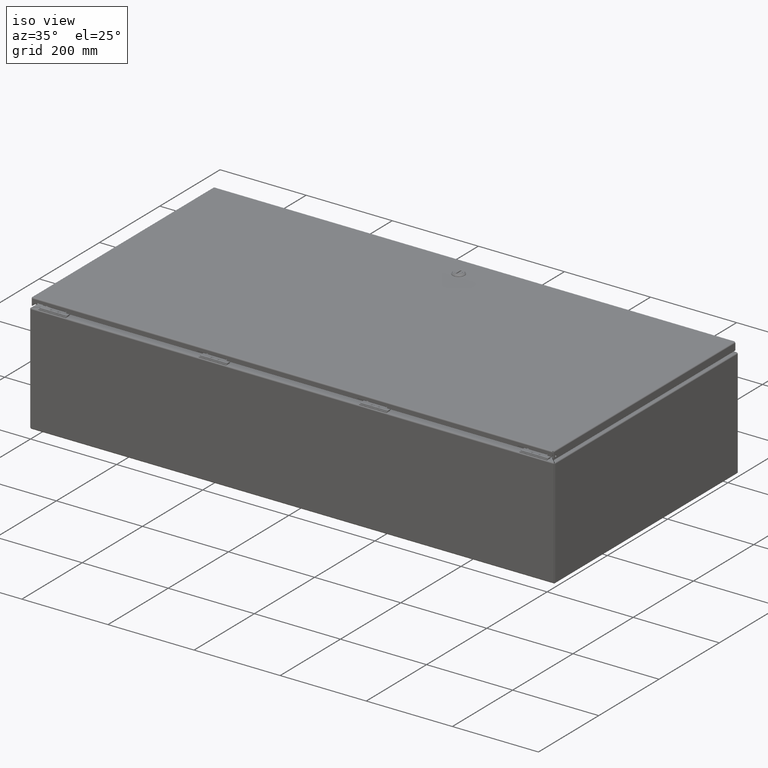
[diagram: clean part render]
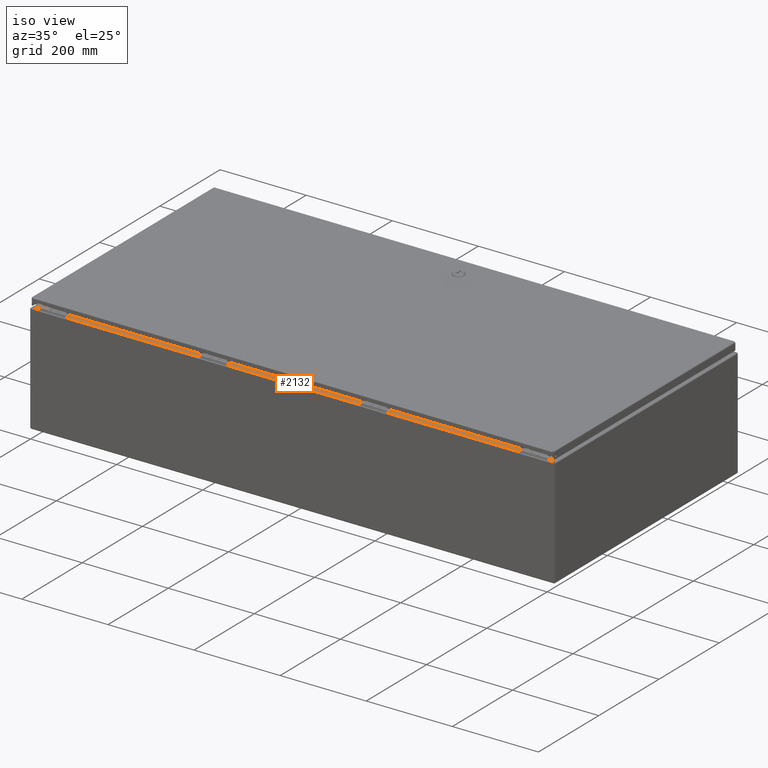
[diagram: same view with one face highlighted and labeled with its STEP entity id]
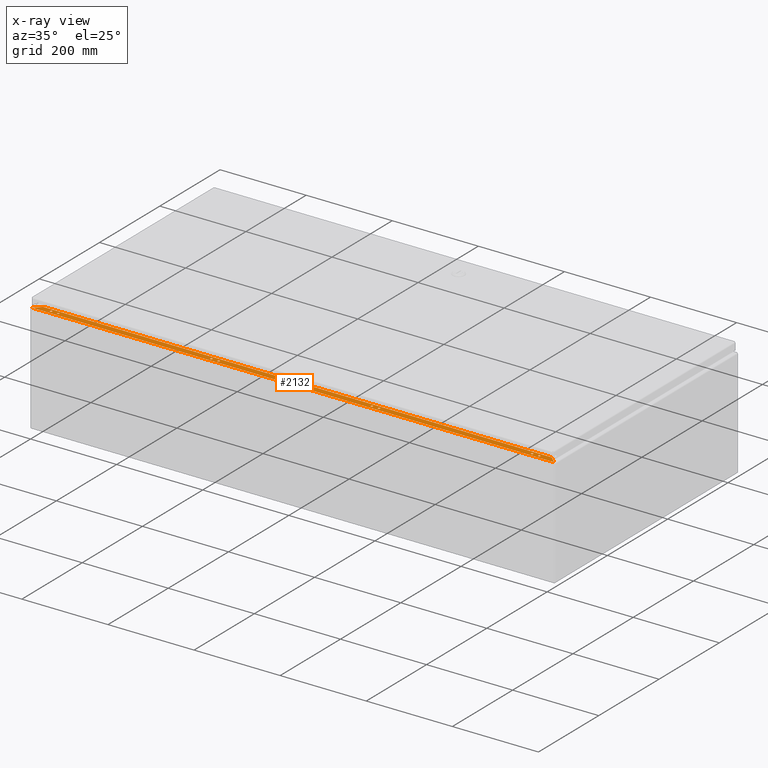
[diagram: x-ray of the same camera — body ghosted, the highlighted face saturated]
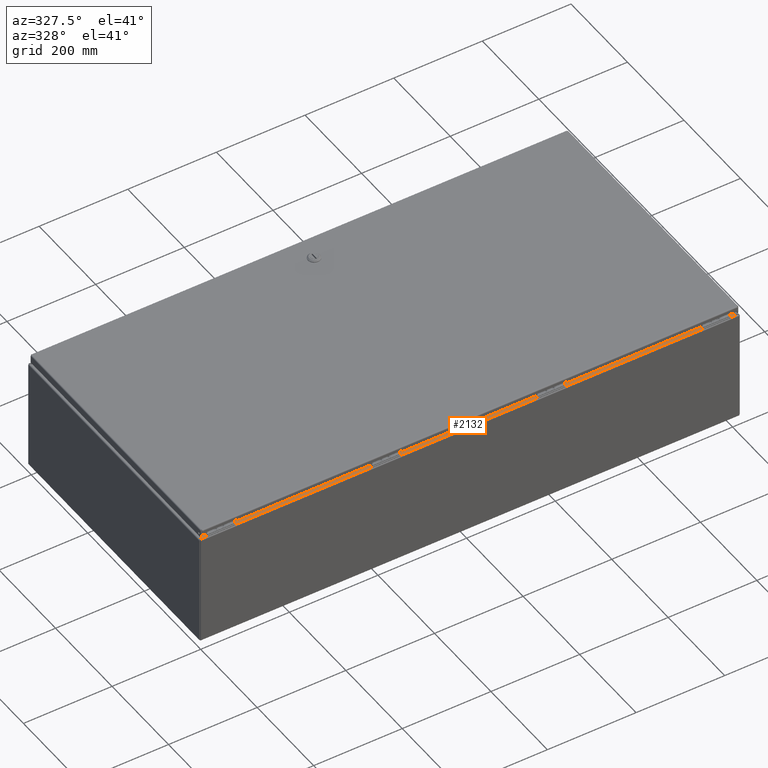
[diagram: same view with one face highlighted and labeled with its STEP entity id]
A machine part, iso view. The second image highlights one B-rep face of the part: STEP entity #2132.
The next image is the same camera in x-ray: the body ghosted, the highlighted face saturated — about 0% of this face is hidden behind the body in this view.
A second angle (auxiliary view) of the same face is appended — the face is thin or edge-on in the first view.
In plain terms, the highlighted planar face has unit normal (0, 0, -1).
Its self-contained STEP definition (entity closure, byte-faithful):
#247=CARTESIAN_POINT('',(31.683499999999995,0.400000000000001,9.999999999999957));
#248=VERTEX_POINT('',#247);
#249=CARTESIAN_POINT('',(31.589499999999997,0.400000000000001,9.999999999999963));
#250=DIRECTION('',(0.0,0.0,-1.0));
#251=DIRECTION('',(-1.0,0.0,0.0));
#252=AXIS2_PLACEMENT_3D('',#249,#250,#251);
#253=CIRCLE('',#252,0.094000000000000);
#254=EDGE_CURVE('',#248,#248,#253,.T.);
#275=CARTESIAN_POINT('',(31.023499999999995,0.400000000000001,9.999999999999957));
#276=VERTEX_POINT('',#275);
#277=CARTESIAN_POINT('',(30.929499999999997,0.400000000000001,9.999999999999963));
#278=DIRECTION('',(0.0,0.0,-1.0));
#279=DIRECTION('',(-1.0,0.0,0.0));
#280=AXIS2_PLACEMENT_3D('',#277,#278,#279);
#281=CIRCLE('',#280,0.094000000000000);
#282=EDGE_CURVE('',#276,#276,#281,.T.);
#303=CARTESIAN_POINT('',(16.356499999999805,0.399999999999989,9.999999999999957));
#304=VERTEX_POINT('',#303);
#305=CARTESIAN_POINT('',(16.262499999999804,0.399999999999989,9.999999999999963));
#306=DIRECTION('',(0.0,0.0,-1.0));
#307=DIRECTION('',(-1.0,0.0,0.0));
#308=AXIS2_PLACEMENT_3D('',#305,#306,#307);
#309=CIRCLE('',#308,0.094000000000000);
#310=EDGE_CURVE('',#304,#304,#309,.T.);
#331=CARTESIAN_POINT('',(17.016499999999805,0.399999999999989,9.999999999999957));
#332=VERTEX_POINT('',#331);
#333=CARTESIAN_POINT('',(16.922499999999808,0.399999999999989,9.999999999999963));
#334=DIRECTION('',(0.0,0.0,-1.0));
#335=DIRECTION('',(-1.0,0.0,0.0));
#336=AXIS2_PLACEMENT_3D('',#333,#334,#335);
#337=CIRCLE('',#336,0.094000000000000);
#338=EDGE_CURVE('',#332,#332,#337,.T.);
#359=CARTESIAN_POINT('',(46.350000000000001,0.399999999999994,9.999999999999957));
#360=VERTEX_POINT('',#359);
#361=CARTESIAN_POINT('',(46.256000000000000,0.399999999999994,9.999999999999963));
#362=DIRECTION('',(0.0,0.0,-1.0));
#363=DIRECTION('',(-1.0,0.0,0.0));
#364=AXIS2_PLACEMENT_3D('',#361,#362,#363);
#365=CIRCLE('',#364,0.094000000000000);
#366=EDGE_CURVE('',#360,#360,#365,.T.);
#387=CARTESIAN_POINT('',(45.690000000000005,0.399999999999994,9.999999999999957));
#388=VERTEX_POINT('',#387);
#389=CARTESIAN_POINT('',(45.596000000000004,0.399999999999994,9.999999999999963));
#390=DIRECTION('',(0.0,0.0,-1.0));
#391=DIRECTION('',(-1.0,0.0,0.0));
#392=AXIS2_PLACEMENT_3D('',#389,#390,#391);
#393=CIRCLE('',#392,0.094000000000000);
#394=EDGE_CURVE('',#388,#388,#393,.T.);
#415=CARTESIAN_POINT('',(2.349999999999802,0.399999999999989,9.999999999999957));
#416=VERTEX_POINT('',#415);
#417=CARTESIAN_POINT('',(2.255999999999802,0.399999999999989,9.999999999999963));
#418=DIRECTION('',(0.0,0.0,-1.0));
#419=DIRECTION('',(-1.0,0.0,0.0));
#420=AXIS2_PLACEMENT_3D('',#417,#418,#419);
#421=CIRCLE('',#420,0.094000000000000);
#422=EDGE_CURVE('',#416,#416,#421,.T.);
#443=CARTESIAN_POINT('',(1.689999999999802,0.399999999999989,9.999999999999957));
#444=VERTEX_POINT('',#443);
#445=CARTESIAN_POINT('',(1.595999999999802,0.399999999999989,9.999999999999963));
#446=DIRECTION('',(0.0,0.0,-1.0));
#447=DIRECTION('',(-1.0,0.0,0.0));
#448=AXIS2_PLACEMENT_3D('',#445,#446,#447);
#449=CIRCLE('',#448,0.094000000000000);
#450=EDGE_CURVE('',#444,#444,#449,.T.);
#703=CARTESIAN_POINT('',(0.065093184460405,0.105249999999999,10.000000000000002));
#704=VERTEX_POINT('',#703);
#738=CARTESIAN_POINT('',(47.786906815539673,0.105249999999999,10.000000000000002));
#739=VERTEX_POINT('',#738);
#890=CARTESIAN_POINT('',(47.184906815539669,0.707250000000000,9.999999999999991));
#891=VERTEX_POINT('',#890);
#898=CARTESIAN_POINT('',(47.786906815539680,0.105250000000002,9.999999999999965));
#899=DIRECTION('',(-0.707106781186548,0.707106781186547,-1.877851E-014));
#900=VECTOR('',#899,0.851356564548608);
#901=LINE('',#898,#900);
#902=EDGE_CURVE('',#739,#891,#901,.T.);
#914=CARTESIAN_POINT('',(0.667093184460414,0.707250000000000,9.999999999999991));
#915=VERTEX_POINT('',#914);
#916=CARTESIAN_POINT('',(0.667093184460413,0.707250000000001,9.999999999999950));
#917=DIRECTION('',(-0.707106781186551,-0.707106781186544,1.877851E-014));
#918=VECTOR('',#917,0.851356564548611);
#919=LINE('',#916,#918);
#920=EDGE_CURVE('',#915,#704,#919,.T.);
#2083=CARTESIAN_POINT('',(47.184906815539669,0.707250000000000,9.999999999999991));
#2084=DIRECTION('',(-1.0,0.0,0.0));
#2085=VECTOR('',#2084,46.517813631079257);
#2086=LINE('',#2083,#2085);
#2087=EDGE_CURVE('',#891,#915,#2086,.T.);
#2092=CARTESIAN_POINT('',(23.925999999999991,-21.779465027225569,10.000000000000512));
#2093=DIRECTION('',(0.0,0.0,-1.0));
#2094=DIRECTION('',(1.0,0.0,0.0));
#2095=AXIS2_PLACEMENT_3D('',#2092,#2093,#2094);
#2096=PLANE('',#2095);
#2097=ORIENTED_EDGE('',*,*,#902,.T.);
#2098=ORIENTED_EDGE('',*,*,#2087,.T.);
#2099=ORIENTED_EDGE('',*,*,#920,.T.);
#2100=CARTESIAN_POINT('',(0.065093184460405,0.105249999999999,10.000000000000002));
#2101=DIRECTION('',(1.0,0.0,0.0));
#2102=VECTOR('',#2101,47.721813631079257);
#2103=LINE('',#2100,#2102);
#2104=EDGE_CURVE('',#704,#739,#2103,.T.);
#2105=ORIENTED_EDGE('',*,*,#2104,.T.);
#2106=EDGE_LOOP('',(#2097,#2098,#2099,#2105));
#2107=FACE_OUTER_BOUND('',#2106,.T.);
#2108=ORIENTED_EDGE('',*,*,#254,.T.);
#2109=EDGE_LOOP('',(#2108));
#2110=FACE_BOUND('',#2109,.T.);
#2111=ORIENTED_EDGE('',*,*,#282,.T.);
#2112=EDGE_LOOP('',(#2111));
#2113=FACE_BOUND('',#2112,.T.);
#2114=ORIENTED_EDGE('',*,*,#310,.T.);
#2115=EDGE_LOOP('',(#2114));
#2116=FACE_BOUND('',#2115,.T.);
#2117=ORIENTED_EDGE('',*,*,#338,.T.);
#2118=EDGE_LOOP('',(#2117));
#2119=FACE_BOUND('',#2118,.T.);
#2120=ORIENTED_EDGE('',*,*,#366,.T.);
#2121=EDGE_LOOP('',(#2120));
#2122=FACE_BOUND('',#2121,.T.);
#2123=ORIENTED_EDGE('',*,*,#394,.T.);
#2124=EDGE_LOOP('',(#2123));
#2125=FACE_BOUND('',#2124,.T.);
#2126=ORIENTED_EDGE('',*,*,#422,.T.);
#2127=EDGE_LOOP('',(#2126));
#2128=FACE_BOUND('',#2127,.T.);
#2129=ORIENTED_EDGE('',*,*,#450,.T.);
#2130=EDGE_LOOP('',(#2129));
#2131=FACE_BOUND('',#2130,.T.);
#2132=ADVANCED_FACE('',(#2107,#2110,#2113,#2116,#2119,#2122,#2125,#2128,#2131),#2096,.F.);